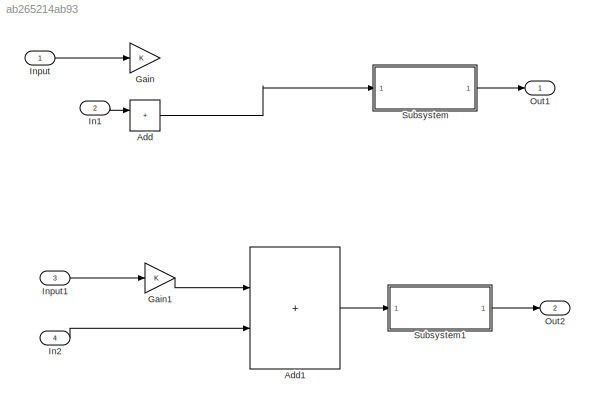
MODEL slx_ab265214ab93
KIND model
CONFIG AbsTol = auto
CONFIG EnableMultiTasking = off
CONFIG FixedStep = auto
CONFIG MaxStep = auto
CONFIG MinStep = auto
CONFIG RelTol = 1e-3
CONFIG SampleTimeConstraint = Unconstrained
CONFIG SolverName = VariableStepAuto
CONFIG StartTime = 0.0
CONFIG StopTime = 10.0
BLOCK [Sum] Add
  IconShape = rectangular
BLOCK [Sum] Add1
  IconShape = rectangular
BLOCK [Gain] Gain
BLOCK [Gain] Gain1
BLOCK [Inport] In1
  Port = 2
BLOCK [Inport] In2
  Port = 4
BLOCK [Inport] Input
BLOCK [Inport] Input1
  Port = 3
BLOCK [Outport] Out1
BLOCK [Outport] Out2
  Port = 2
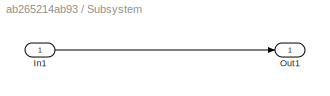
BLOCK [SubSystem] Subsystem
BLOCK [Inport] Subsystem/In1
BLOCK [Outport] Subsystem/Out1
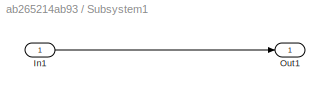
BLOCK [SubSystem] Subsystem1
BLOCK [Inport] Subsystem1/In1
BLOCK [Outport] Subsystem1/Out1
LINE Add1:1 -> Subsystem1:1
LINE Add:1 -> Subsystem:1
LINE Gain1:1 -> Add1:1
LINE In1:1 -> Add:1
LINE In2:1 -> Add1:2
LINE Input1:1 -> Gain1:1
LINE Input:1 -> Gain:1
LINE Subsystem/In1:1 -> Subsystem/Out1:1
LINE Subsystem1/In1:1 -> Subsystem1/Out1:1
LINE Subsystem1:1 -> Out2:1
LINE Subsystem:1 -> Out1:1
